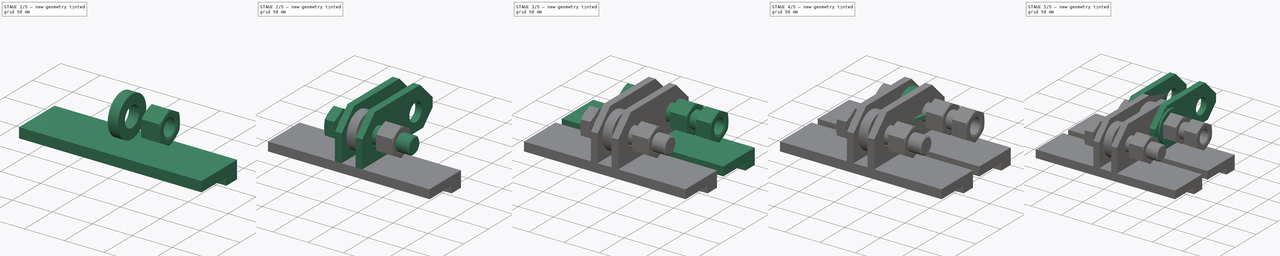
[diagram: build sequence overview — one tinted view per stage of 5, left to right]
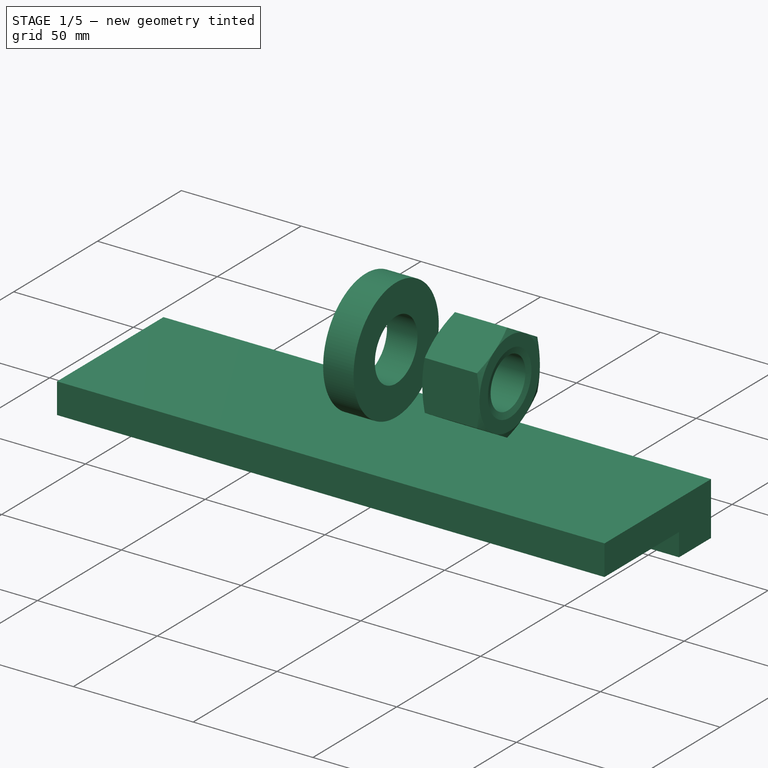
[diagram: stage 1 of 5 — iso view after this stage's code; geometry added in this stage tinted green]
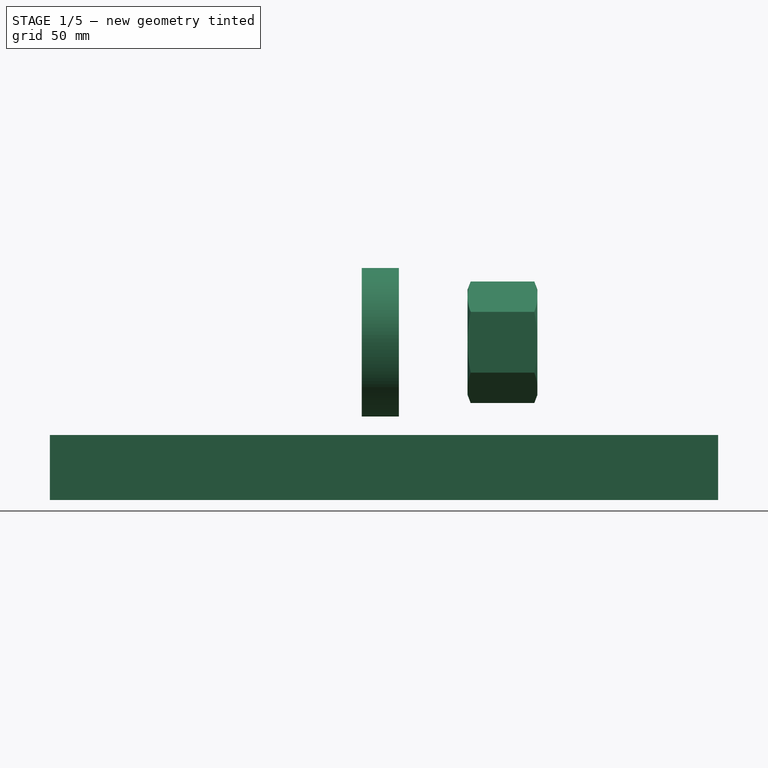
[diagram: stage 1 of 5 — front view after this stage's code; geometry added in this stage tinted green]
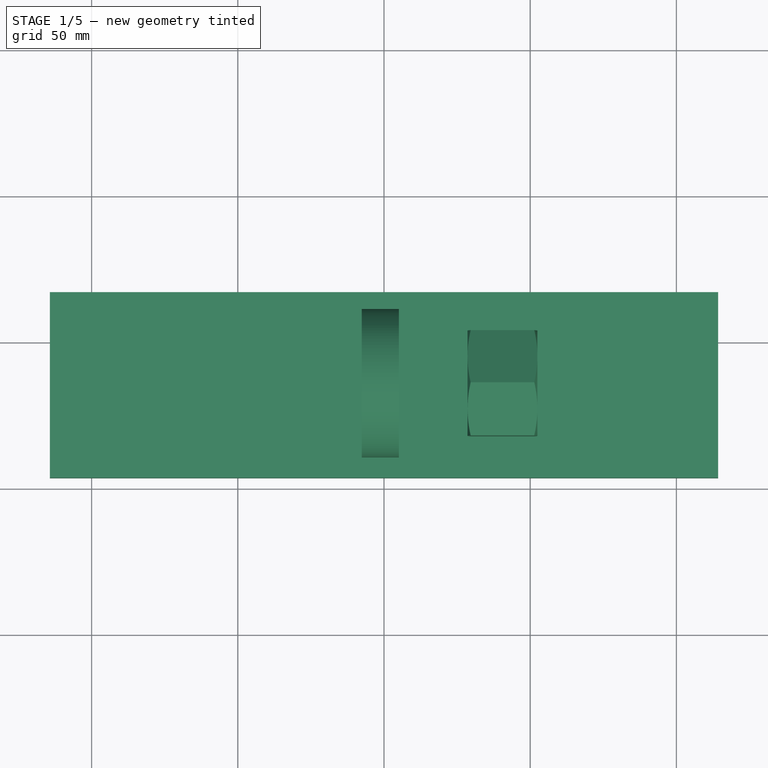
[diagram: stage 1 of 5 — top view after this stage's code; geometry added in this stage tinted green]
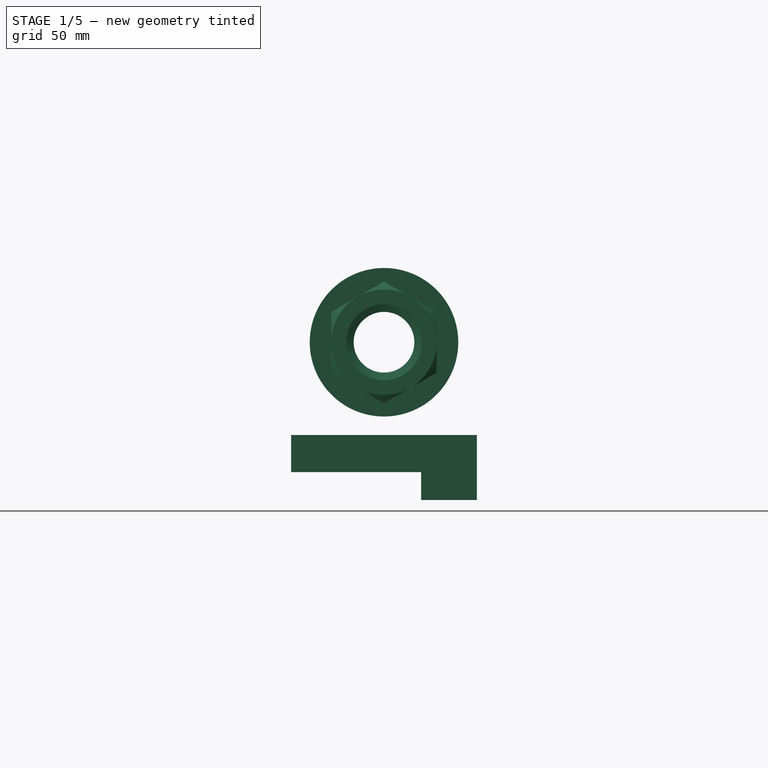
[diagram: stage 1 of 5 — right view after this stage's code; geometry added in this stage tinted green]
FCSTD DOCUMENT  (FreeCAD 0.16R6712 (Git))
Label: track unit mc1710
License: All rights reserved
LicenseURL: http://en.wikipedia.org/wiki/All_rights_reserved
objects: App::FeaturePython×13, PartDesign::Pad×9, Sketcher::SketchObject×8, Part::FeaturePython×5, Part::Cylinder×3, Part::MultiFuse×1, App::MeasureDistance×1
note: 35 computed .brp shape members not serialized (recipe doc carries the construction recipe); baked Part::Feature solids carry a one-line shape summary decoded from their .brp

FEATURE [Sketcher::SketchObject] Sketch
  sketch-geometry (4):
    g0: LineSegment StartX=-114.3 StartY=31.75 StartZ=0 EndX=114.3 EndY=31.75 EndZ=0
    g1: LineSegment StartX=114.3 StartY=31.75 StartZ=0 EndX=114.3 EndY=-31.75 EndZ=0
    g2: LineSegment StartX=114.3 StartY=-31.75 StartZ=0 EndX=-114.3 EndY=-31.75 EndZ=0
    g3: LineSegment StartX=-114.3 StartY=-31.75 StartZ=0 EndX=-114.3 EndY=31.75 EndZ=0
  constraints (11):
    c: Coincident(g0,g1)
    c: Coincident(g1,g2)
    c: Coincident(g2,g3)
    c: Coincident(g3,g0)
    c: Horizontal(g0)
    c: Horizontal(g2)
    c: Vertical(g1)
    c: Vertical(g3)
    c: DistanceX(g0,g0) = 228.6
    c: DistanceY(g3,g3) = 63.5
    c: Symmetric(g1,g0,g-1)
FEATURE [PartDesign::Pad] Pad
  Length = 12.7
  Length2 = 100
  Placement = pos=(0,11.43,6.36567) rot=(0,0,1;0rad)
  Sketch = -> Sketch
  Type = 0
FEATURE [Part::FeaturePython] Nut002  label="M24-Nut002"  # Fasteners workbench fastener (typed FeaturePython)
  Placement = pos=(28.575,-64.77,50.8) rot=(0,1,0;1.5708rad)
  diameter = 9
  invert = false
  matchOuter = false
  offset = 0
  thread = false
  type = 2
FEATURE [App::FeaturePython] axialConstraint01  # a2plus constraint (typed FeaturePython)
  Object1 = Pad002
  Object2 = Pad001
  SubElement1 = Face10
  SubElement2 = Face10
  Type = axial
  directionConstraint = 0
  lockRotation = false
FEATURE [App::FeaturePython] axialConstraint02  # a2plus constraint (typed FeaturePython)
  Object1 = Pad007
  Object2 = Pad005
  SubElement1 = Face11
  SubElement2 = Face11
  Type = axial
  directionConstraint = 0
  lockRotation = false
FEATURE [App::FeaturePython] planeConstraint01  # a2plus constraint (typed FeaturePython)
  Object1 = Pad002
  Object2 = Pad007
  SubElement1 = Face12
  SubElement2 = Face13
  Type = plane
  directionConstraint = 0
  offset = 0
FEATURE [App::FeaturePython] planeConstraint02  # a2plus constraint (typed FeaturePython)
  Object1 = Pad005
  Object2 = Pad001
  SubElement1 = Face12
  SubElement2 = Face13
  Type = plane
  directionConstraint = 0
  offset = 0
FEATURE [App::FeaturePython] axialConstraint03  # a2plus constraint (typed FeaturePython)
  Object1 = Pad002
  Object2 = Pad007
  SubElement1 = Face11
  SubElement2 = Face10
  Type = axial
  directionConstraint = 0
  lockRotation = false
FEATURE [App::FeaturePython] axialConstraint04  # a2plus constraint (typed FeaturePython)
  Object1 = Pad001
  Object2 = Pad005
  SubElement1 = Face11
  SubElement2 = Face10
  Type = axial
  directionConstraint = 0
  lockRotation = false
FEATURE [App::FeaturePython] axialConstraint05  # a2plus constraint (typed FeaturePython)
  Object1 = Pad005
  Object2 = Pad007
  SubElement1 = Face11
  SubElement2 = Face11
  Type = axial
  directionConstraint = 0
  lockRotation = false
FEATURE [App::FeaturePython] angleConstraint01  # a2plus constraint (typed FeaturePython)
  Object1 = Pad007
  Object2 = Pad004
  SubElement1 = Face7
  SubElement2 = Face1
  Type = angle_between_planes
  angle = 0
FEATURE [App::MeasureDistance] Distance  label="Distance: 0.775 in"
  Distance = 19.685
  P1 = (9.525,20.2564,82.5657)
  P2 = (-10.16,20.2564,82.5657)
FEATURE [Sketcher::SketchObject] Sketch008
  Placement = pos=(0,0,0) rot=(0.57735,0.57735,0.57735;2.0944rad)
  sketch-geometry (2):
    g0: Circle CenterX=0 CenterY=0 CenterZ=0 NormalX=0 NormalY=0 NormalZ=1 Radius=25.4
    g1: Circle CenterX=0 CenterY=0 CenterZ=0 NormalX=0 NormalY=0 NormalZ=1 Radius=12.7
  constraints (4):
    c: Coincident(g0,g-1)
    c: Radius(g0) = 25.4
    c: Coincident(g1,g-1)
    c: Radius(g1) = 12.7
FEATURE [PartDesign::Pad] Pad008
  Length = 12.7
  Length2 = 100
  Placement = pos=(-7.62,-64.77,50.8) rot=(0.57735,0.57735,0.57735;2.0944rad)
  Sketch = -> Sketch008
  Type = 0
FEATURE [App::FeaturePython] axialConstraint06  # a2plus constraint (typed FeaturePython)
  Object1 = Pad008
  Object2 = Screw001
  SubElement1 = Face2
  SubElement2 = Face19
  Type = axial
  directionConstraint = 1
  lockRotation = false
FEATURE [App::FeaturePython] planeConstraint03  # a2plus constraint (typed FeaturePython)
  Object1 = Pad008
  Object2 = Pad003
  SubElement1 = Face3
  SubElement2 = Face3
  Type = plane
  directionConstraint = 0
  offset = 0
FEATURE [App::FeaturePython] planeConstraint04  # a2plus constraint (typed FeaturePython)
  Object1 = Screw001
  Object2 = Screw
  SubElement1 = Face1
  SubElement2 = Face1
  Type = plane
  directionConstraint = 0
  offset = 0
FEATURE [App::FeaturePython] planeConstraint05  # a2plus constraint (typed FeaturePython)
  Object1 = Nut002
  Object2 = Nut
  SubElement1 = Face3
  SubElement2 = Face3
  Type = plane
  directionConstraint = 0
  offset = 0
FEATURE [PartDesign::Pad] Pad009
  Length = 228.6
  Length2 = 100
  Placement = pos=(0,-64.77,6.36567) rot=(0,0,1;0rad)
  Reversed = true
  Sketch = -> Sketch004
  Type = 0
FEATURE [App::FeaturePython] planeConstraint06  # a2plus constraint (typed FeaturePython)
  Object1 = Pad009
  Object2 = Pad005
  SubElement1 = Face2
  SubElement2 = Face1
  Type = plane
  directionConstraint = 0
  offset = 0
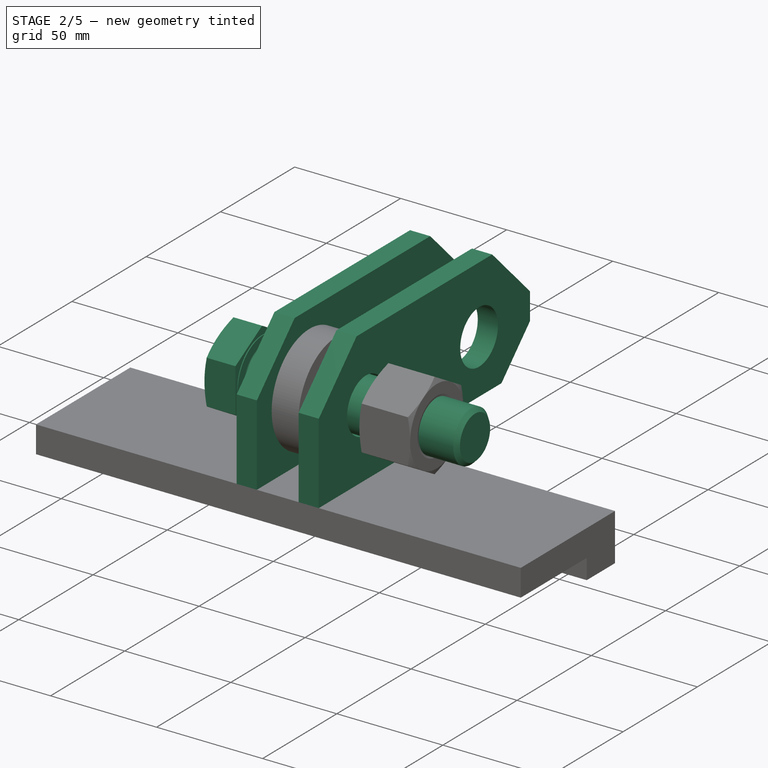
[diagram: stage 2 of 5 — iso view after this stage's code; geometry added in this stage tinted green]
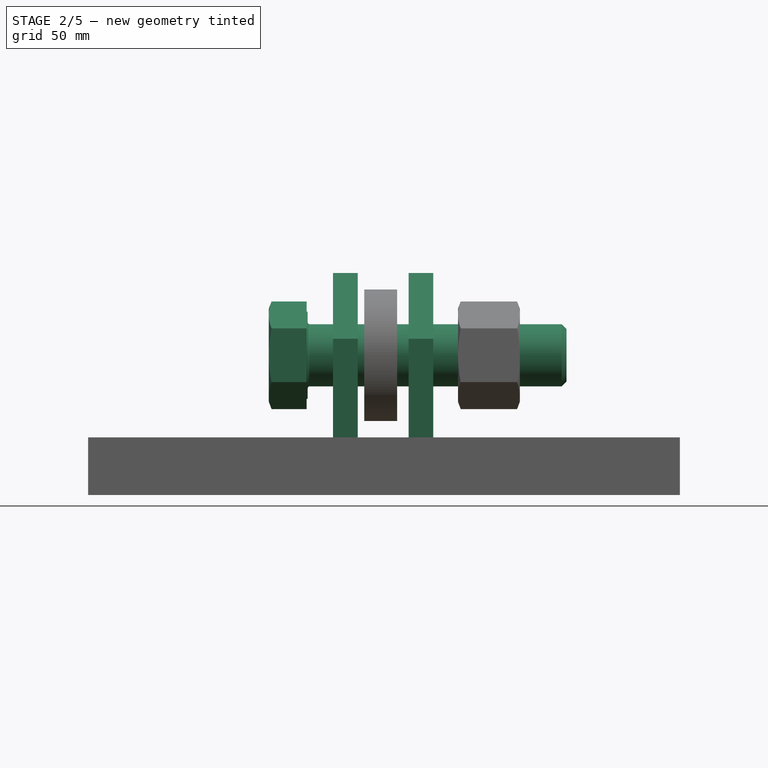
[diagram: stage 2 of 5 — front view after this stage's code; geometry added in this stage tinted green]
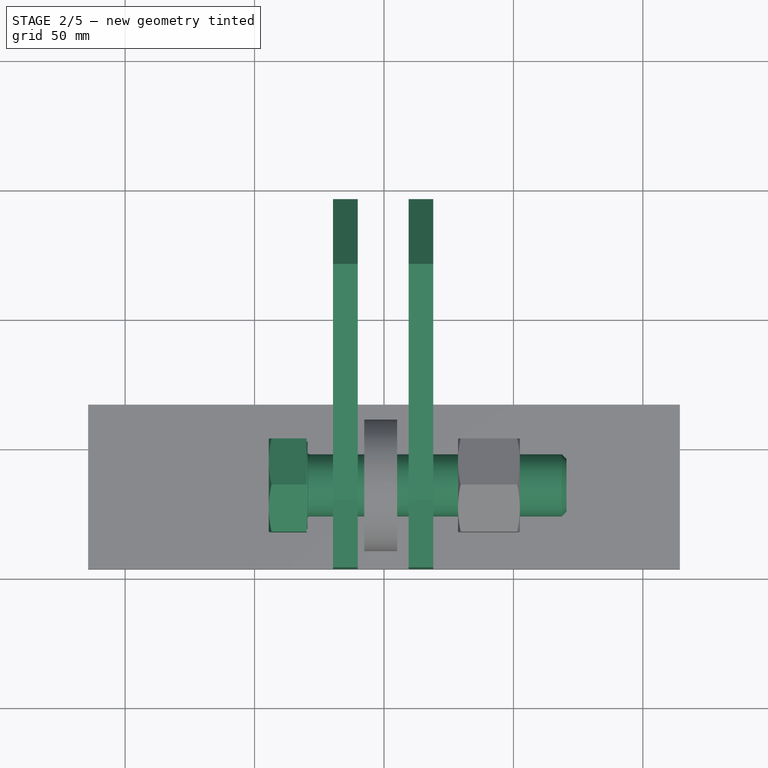
[diagram: stage 2 of 5 — top view after this stage's code; geometry added in this stage tinted green]
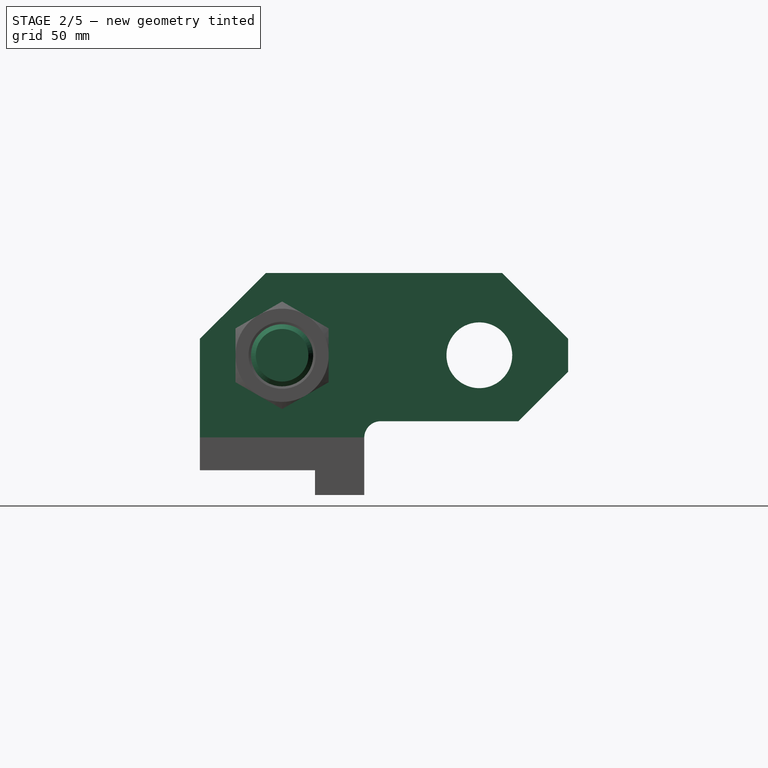
[diagram: stage 2 of 5 — right view after this stage's code; geometry added in this stage tinted green]
FEATURE [Sketcher::SketchObject] Sketch005
  Placement = pos=(0,0,0) rot=(0.57735,0.57735,0.57735;2.0944rad)
  sketch-geometry (11):
    g0: LineSegment StartX=-45.6564 StartY=31.7657 StartZ=0 EndX=45.6564 EndY=31.7657 EndZ=0
    g1: LineSegment StartX=71.12 StartY=6.36567 StartZ=0 EndX=71.12 EndY=-6.33433 EndZ=0
    g2: LineSegment StartX=-71.12 StartY=-31.7343 StartZ=0 EndX=-71.12 EndY=6.36567 EndZ=0
    g3: Circle CenterX=-39.37 CenterY=0 CenterZ=0 NormalX=0 NormalY=0 NormalZ=1 Radius=12.7
    g4: Circle CenterX=36.83 CenterY=0 CenterZ=0 NormalX=0 NormalY=0 NormalZ=1 Radius=12.7
    g5: LineSegment StartX=-45.6564 StartY=31.7657 StartZ=0 EndX=-71.12 EndY=6.36567 EndZ=0
    g6: LineSegment StartX=45.6564 StartY=31.7657 StartZ=0 EndX=71.12 EndY=6.36567 EndZ=0
    g7: LineSegment StartX=-71.12 StartY=-31.7343 StartZ=0 EndX=-7.62 EndY=-31.7343 EndZ=0
    g8: ArcOfCircle CenterX=-1.27071 CenterY=-31.8292 CenterZ=0 NormalX=0 NormalY=0 NormalZ=1 Radius=6.35 StartAngle=1.57081 EndAngle=3.12666
    g9: LineSegment StartX=-1.27081 StartY=-25.4792 StartZ=0 EndX=51.9272 EndY=-25.4792 EndZ=0
    g10: LineSegment StartX=71.12 StartY=-6.33433 StartZ=0 EndX=51.9272 EndY=-25.4792 EndZ=0
  constraints (34):
    c: Vertical(g1)
    c: Vertical(g2)
    c: Radius(g3) = 12.7
    c: DistanceX(g2,g3) = 31.75
    c: Equal(g3,g4) = 12.7
    c: DistanceX(g3,g4) = 76.2
    c: Coincident(g2,g5)
    c: PointOnObject(g0,g5)
    c: Coincident(g5,g0)
    c: Coincident(g0,g6)
    c: Coincident(g1,g6)
    c: DistanceX(g0,g0) = 91.3127
    c: Symmetric(g1,g2,g-2)
    c: Equal(g5,g6)
    c: DistanceY(g1,g1) = 12.7
    c: PointOnObject(g3,g-1)
    c: PointOnObject(g4,g-1)
    c: DistanceY(g2,g0) = 63.5
    c: Coincident(g7,g2)
    c: Horizontal(g7)
    c: DistanceX(g7,g7) = 63.5
    c: Coincident(g8,g7)
    c: Radius(g8) = 6.35
    c: Horizontal(g9)
    c: Coincident(g9,g8)
    c: DistanceY(g2,g2) = 38.1
    c: DistanceX(g9) = 51.9272
    c: DistanceY(g9) = -25.4792
    c: Coincident(g10,g1)
    c: Coincident(g10,g9)
    c: DistanceX(g2,g1) = 142.24
    c: Parallel(g10,g5)
    c: Horizontal(g0)
    c: DistanceX(g9,g9) = 53.198
FEATURE [PartDesign::Pad] Pad005
  Length = 9.525
  Length2 = 100
  Placement = pos=(-19.685,-25.4,50.8) rot=(0.57735,0.57735,0.57735;2.0944rad)
  Sketch = -> Sketch005
  Type = 0
FEATURE [Sketcher::SketchObject] Sketch007
  Placement = pos=(0,0,0) rot=(0.57735,0.57735,0.57735;2.0944rad)
  sketch-geometry (11):
    g0: LineSegment StartX=-45.6564 StartY=31.7657 StartZ=0 EndX=45.6564 EndY=31.7657 EndZ=0
    g1: LineSegment StartX=71.12 StartY=6.36567 StartZ=0 EndX=71.12 EndY=-6.33433 EndZ=0
    g2: LineSegment StartX=-71.12 StartY=-31.7343 StartZ=0 EndX=-71.12 EndY=6.36567 EndZ=0
    g3: Circle CenterX=-39.37 CenterY=0 CenterZ=0 NormalX=0 NormalY=0 NormalZ=1 Radius=12.7
    g4: Circle CenterX=36.83 CenterY=0 CenterZ=0 NormalX=0 NormalY=0 NormalZ=1 Radius=12.7
    g5: LineSegment StartX=-45.6564 StartY=31.7657 StartZ=0 EndX=-71.12 EndY=6.36567 EndZ=0
    g6: LineSegment StartX=45.6564 StartY=31.7657 StartZ=0 EndX=71.12 EndY=6.36567 EndZ=0
    g7: LineSegment StartX=-71.12 StartY=-31.7343 StartZ=0 EndX=-7.62 EndY=-31.7343 EndZ=0
    g8: ArcOfCircle CenterX=-1.27071 CenterY=-31.8292 CenterZ=0 NormalX=0 NormalY=0 NormalZ=1 Radius=6.35 StartAngle=1.57081 EndAngle=3.12666
    g9: LineSegment StartX=-1.27081 StartY=-25.4792 StartZ=0 EndX=51.9272 EndY=-25.4792 EndZ=0
    g10: LineSegment StartX=71.12 StartY=-6.33433 StartZ=0 EndX=51.9272 EndY=-25.4792 EndZ=0
  constraints (34):
    c: Vertical(g1)
    c: Vertical(g2)
    c: Radius(g3) = 12.7
    c: DistanceX(g2,g3) = 31.75
    c: Equal(g3,g4) = 12.7
    c: DistanceX(g3,g4) = 76.2
    c: Coincident(g2,g5)
    c: PointOnObject(g0,g5)
    c: Coincident(g5,g0)
    c: Coincident(g0,g6)
    c: Coincident(g1,g6)
    c: DistanceX(g0,g0) = 91.3127
    c: Symmetric(g1,g2,g-2)
    c: Equal(g5,g6)
    c: DistanceY(g1,g1) = 12.7
    c: PointOnObject(g3,g-1)
    c: PointOnObject(g4,g-1)
    c: DistanceY(g2,g0) = 63.5
    c: Coincident(g7,g2)
    c: Horizontal(g7)
    c: DistanceX(g7,g7) = 63.5
    c: Coincident(g8,g7)
    c: Radius(g8) = 6.35
    c: Horizontal(g9)
    c: Coincident(g9,g8)
    c: DistanceY(g2,g2) = 38.1
    c: DistanceX(g9) = 51.9272
    c: DistanceY(g9) = -25.4792
    c: Coincident(g10,g1)
    c: Coincident(g10,g9)
    c: DistanceX(g2,g1) = 142.24
    c: Parallel(g10,g5)
    c: Horizontal(g0)
    c: DistanceX(g9,g9) = 53.198
FEATURE [PartDesign::Pad] Pad007
  Length = 9.525
  Length2 = 100
  Placement = pos=(9.525,-25.4,50.8) rot=(0.57735,0.57735,0.57735;2.0944rad)
  Sketch = -> Sketch007
  Type = 0
FEATURE [Part::FeaturePython] Screw001  label="M24x100-Screw"  # Fasteners workbench fastener (typed FeaturePython)
  Placement = pos=(-29.502,-64.77,50.8) rot=(0,-1,0;1.5708rad)
  diameter = 17
  invert = false
  length = 1
  matchOuter = false
  offset = 0
  thread = false
  type = 13
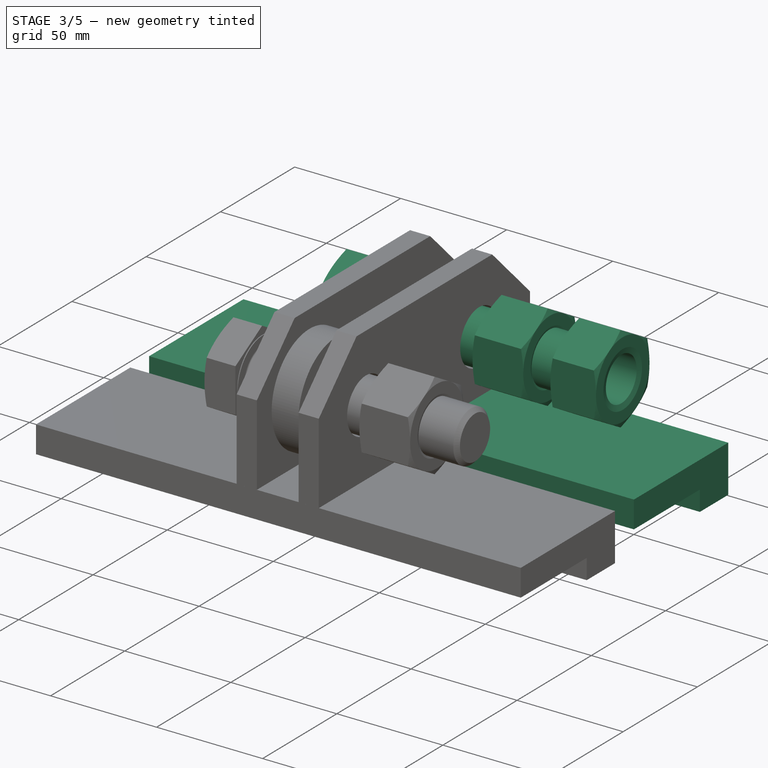
[diagram: stage 3 of 5 — iso view after this stage's code; geometry added in this stage tinted green]
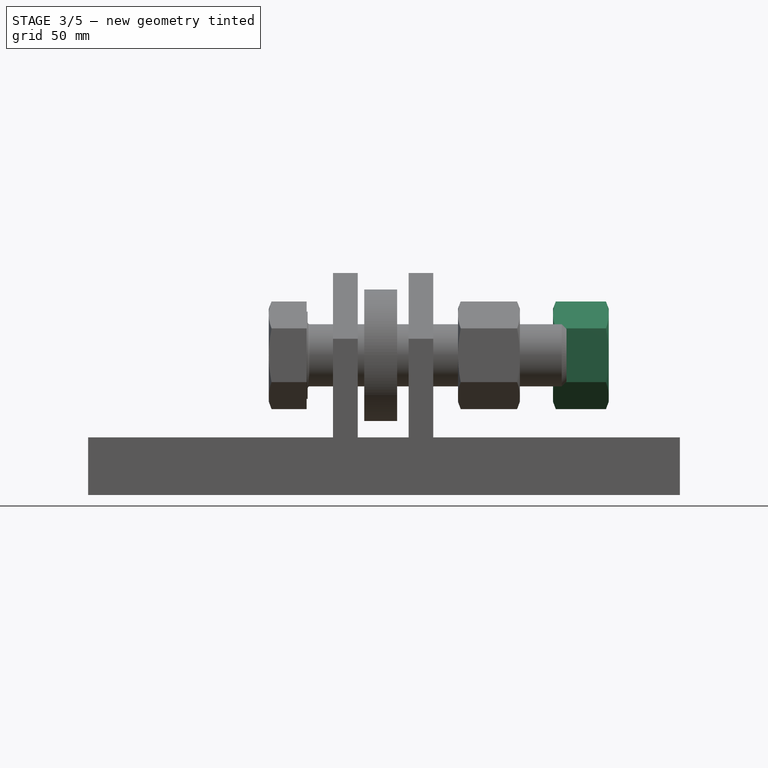
[diagram: stage 3 of 5 — front view after this stage's code; geometry added in this stage tinted green]
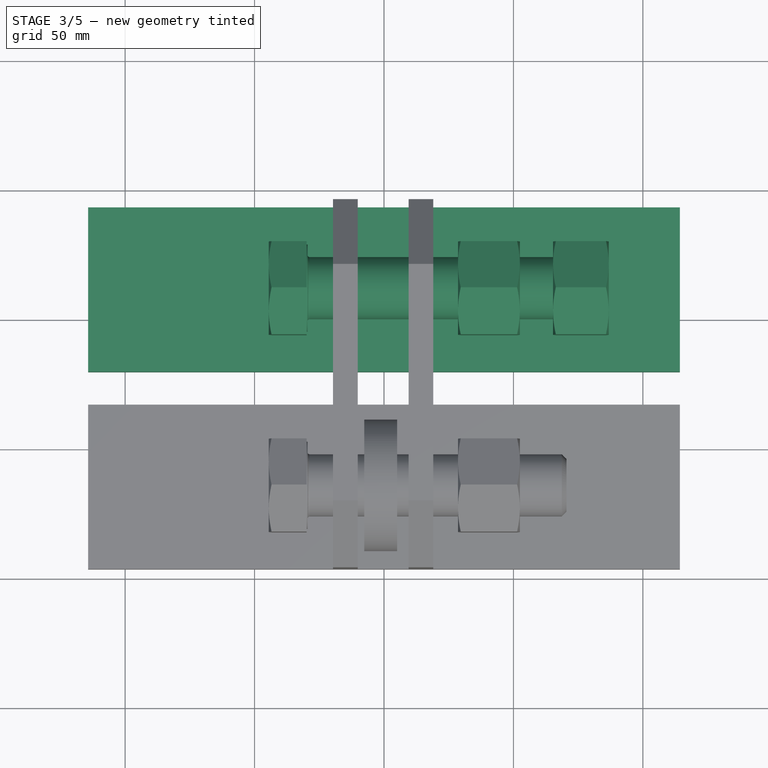
[diagram: stage 3 of 5 — top view after this stage's code; geometry added in this stage tinted green]
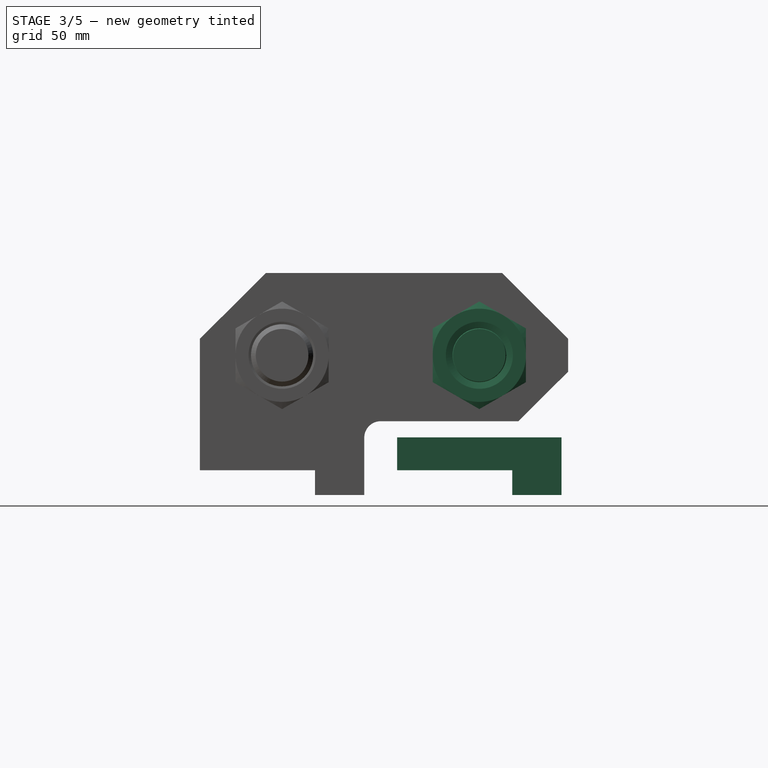
[diagram: stage 3 of 5 — right view after this stage's code; geometry added in this stage tinted green]
FEATURE [Part::FeaturePython] Screw  label="M24x100-Screw001"  # Fasteners workbench fastener (typed FeaturePython)
  Placement = pos=(-29.502,11.43,50.8) rot=(0,-1,0;1.5708rad)
  diameter = 17
  invert = false
  length = 1
  matchOuter = false
  offset = 0
  thread = false
  type = 13
FEATURE [Part::FeaturePython] Nut  label="M24-Nut"  # Fasteners workbench fastener (typed FeaturePython)
  Placement = pos=(28.575,11.43,50.8) rot=(0,1,0;1.5708rad)
  diameter = 9
  invert = false
  matchOuter = false
  offset = 0
  thread = false
  type = 2
FEATURE [Part::FeaturePython] Nut001  label="M24-Nut001"  # Fasteners workbench fastener (typed FeaturePython)
  Placement = pos=(65.302,11.43,50.8) rot=(0,1,0;1.5708rad)
  diameter = 17
  invert = false
  matchOuter = false
  offset = 0
  thread = false
  type = 1
FEATURE [Sketcher::SketchObject] Sketch004
  ExternalGeometry = -> [Pad]
  Placement = pos=(114.3,11.43,6.36567) rot=(0.57735,0.57735,0.57735;2.0944rad)
  Support = -> Pad [Face2]
  sketch-geometry (4):
    g0: LineSegment StartX=31.75 StartY=0 StartZ=0 EndX=12.7 EndY=0 EndZ=0
    g1: LineSegment StartX=12.7 StartY=0 StartZ=0 EndX=12.7 EndY=-9.525 EndZ=0
    g2: LineSegment StartX=12.7 StartY=-9.525 StartZ=0 EndX=31.75 EndY=-9.525 EndZ=0
    g3: LineSegment StartX=31.75 StartY=-9.525 StartZ=0 EndX=31.75 EndY=0 EndZ=0
  constraints (12):
    c: Coincident(g0,g1)
    c: Coincident(g1,g2)
    c: Coincident(g2,g3)
    c: Coincident(g3,g0)
    c: Horizontal(g0)
    c: Horizontal(g2)
    c: Vertical(g1)
    c: Vertical(g3)
    c: PointOnObject(g0,g-1)
    c: Coincident(g0,g-4)
    c: DistanceY(g3,g3) = 9.525  'Cleat Height'
    c: DistanceX(g2,g2) = 19.05  'Cleat Width'
FEATURE [PartDesign::Pad] Pad004
  Length = 228.6
  Length2 = 100
  Placement = pos=(0,11.43,6.36567) rot=(0,0,1;0rad)
  Reversed = true
  Sketch = -> Sketch004
  Type = 0
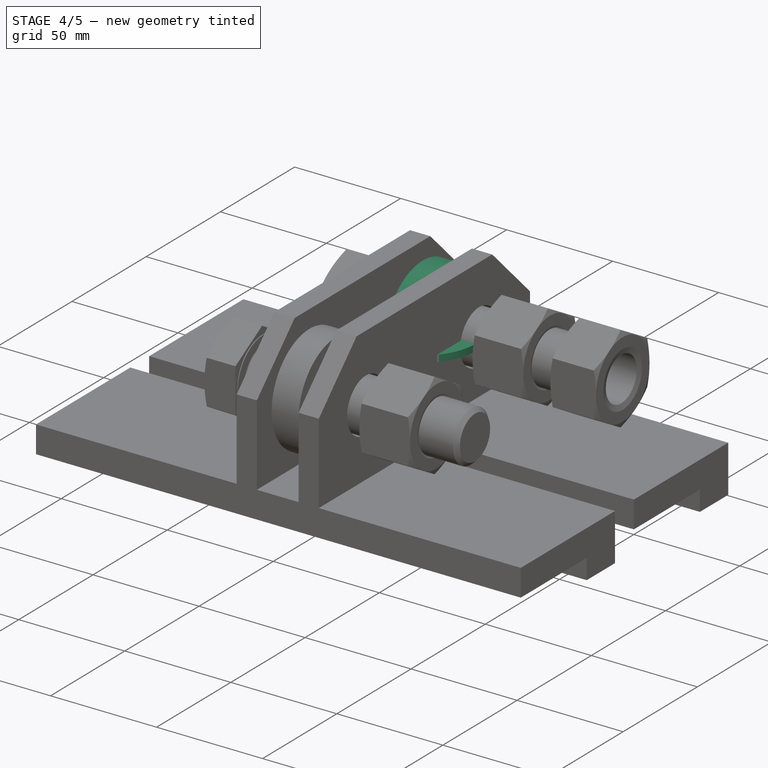
[diagram: stage 4 of 5 — iso view after this stage's code; geometry added in this stage tinted green]
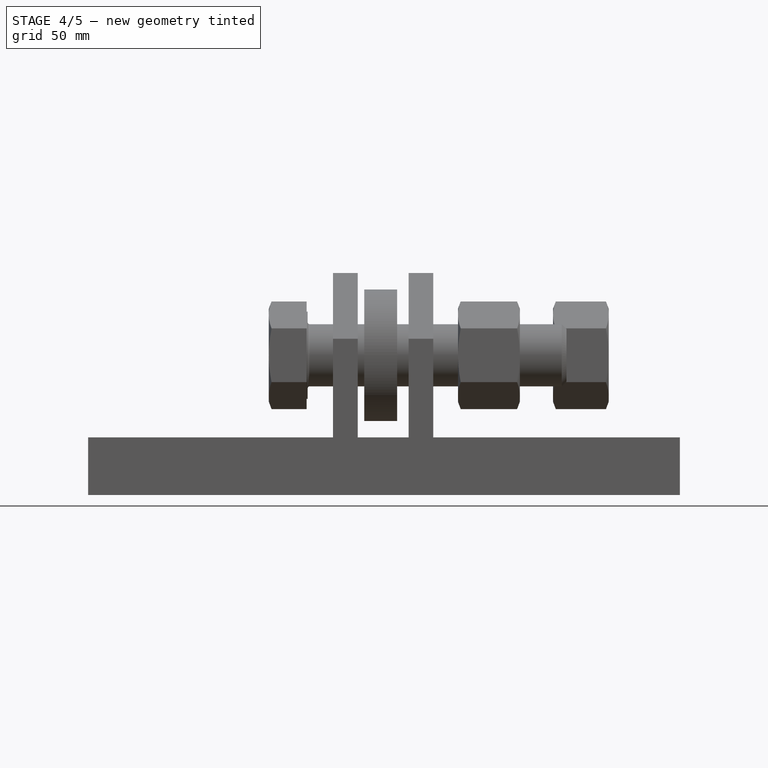
[diagram: stage 4 of 5 — front view after this stage's code; geometry added in this stage tinted green]
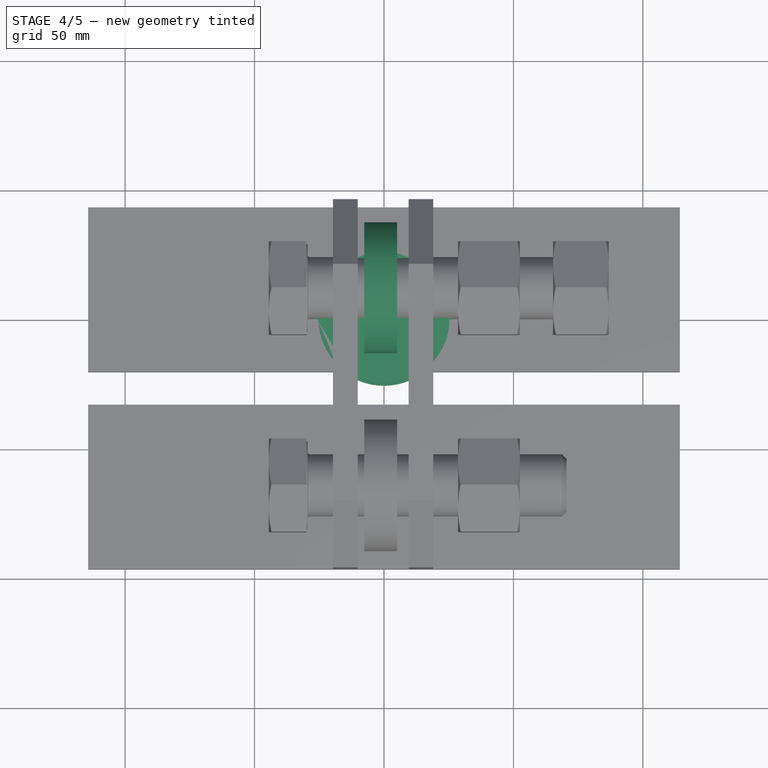
[diagram: stage 4 of 5 — top view after this stage's code; geometry added in this stage tinted green]
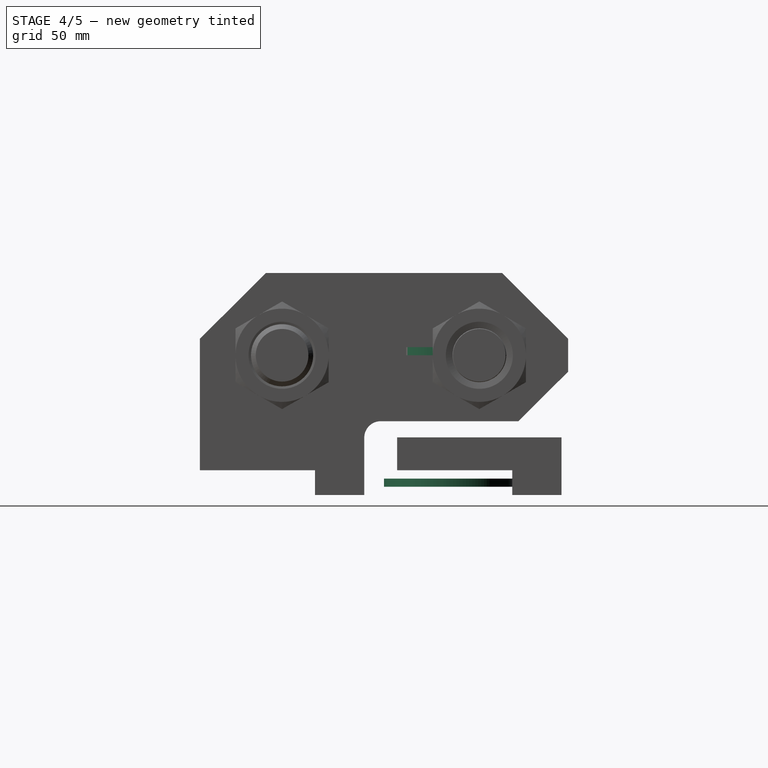
[diagram: stage 4 of 5 — right view after this stage's code; geometry added in this stage tinted green]
FEATURE [Part::Cylinder] Cylinder003
  Angle = 360
  Height = 3.17
  Radius = 25.4
FEATURE [Part::Cylinder] Cylinder004
  Angle = 360
  Height = 3.17
  Placement = pos=(0,0,50.8) rot=(0,0,1;0rad)
  Radius = 25.4
FEATURE [Sketcher::SketchObject] Sketch003
  Placement = pos=(-7.62,0,0) rot=(0.57735,0.57735,0.57735;2.0944rad)
  sketch-geometry (2):
    g0: Circle CenterX=0 CenterY=0 CenterZ=0 NormalX=0 NormalY=0 NormalZ=1 Radius=25.4
    g1: Circle CenterX=0 CenterY=0 CenterZ=0 NormalX=0 NormalY=0 NormalZ=1 Radius=12.7
  constraints (4):
    c: Coincident(g0,g-1)
    c: Radius(g0) = 25.4
    c: Coincident(g1,g-1)
    c: Radius(g1) = 12.7
FEATURE [PartDesign::Pad] Pad003  label="roller"
  Length = 12.7
  Length2 = 100
  Placement = pos=(-7.62,11.43,50.8) rot=(0.57735,0.57735,0.57735;2.0944rad)
  Sketch = -> Sketch003
  Type = 0
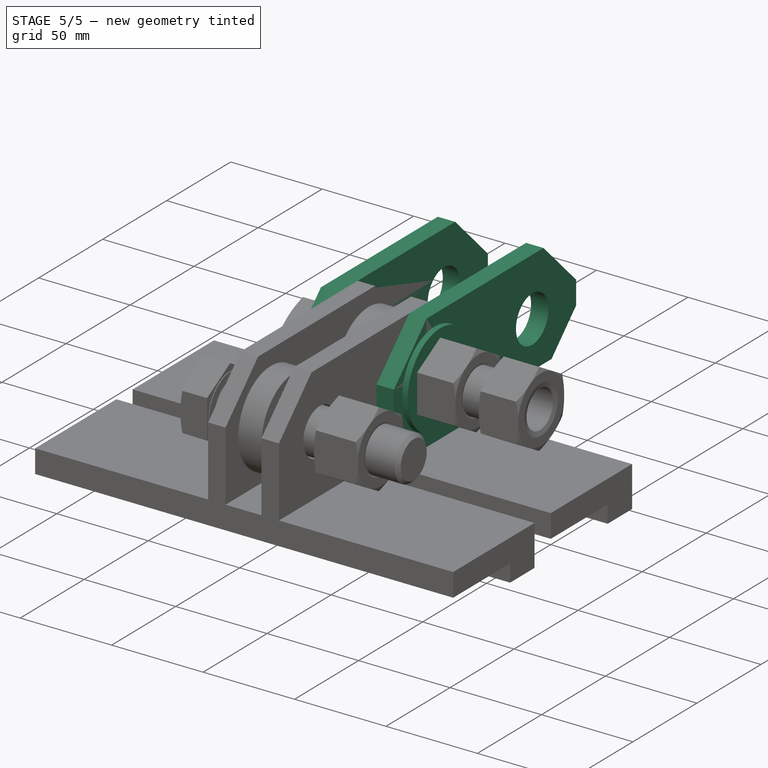
[diagram: stage 5 of 5 — iso view after this stage's code; geometry added in this stage tinted green]
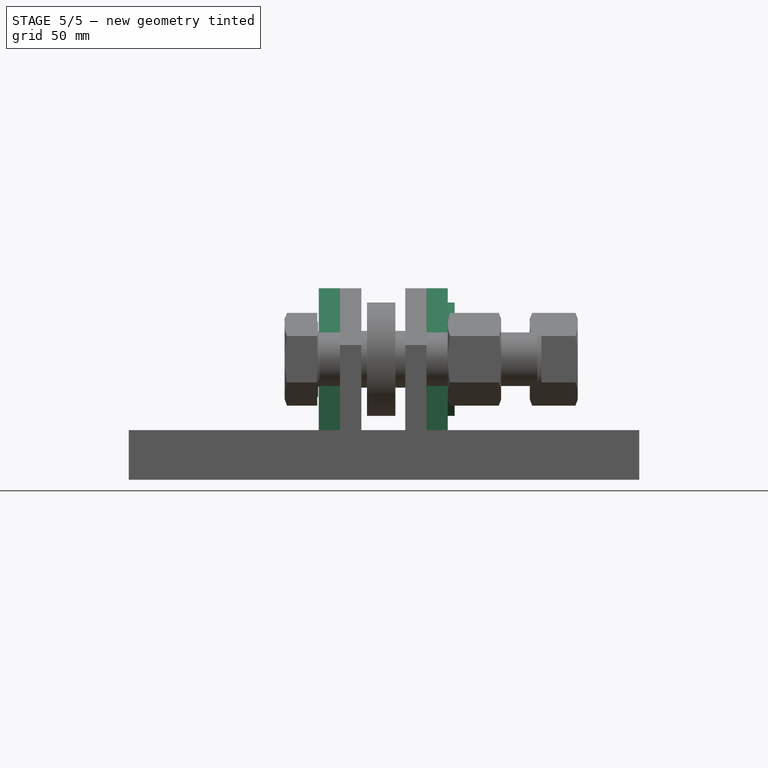
[diagram: stage 5 of 5 — front view after this stage's code; geometry added in this stage tinted green]
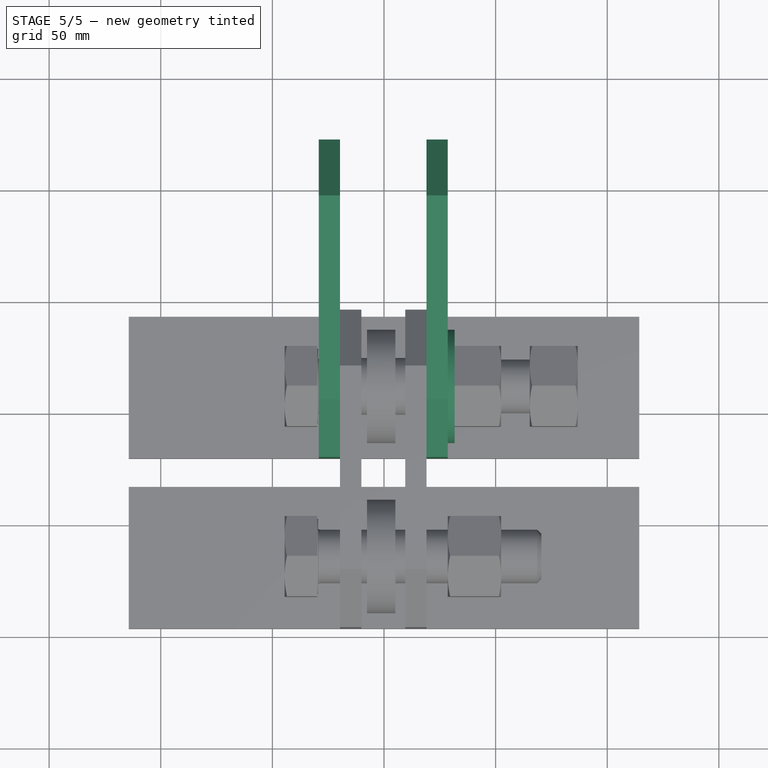
[diagram: stage 5 of 5 — top view after this stage's code; geometry added in this stage tinted green]
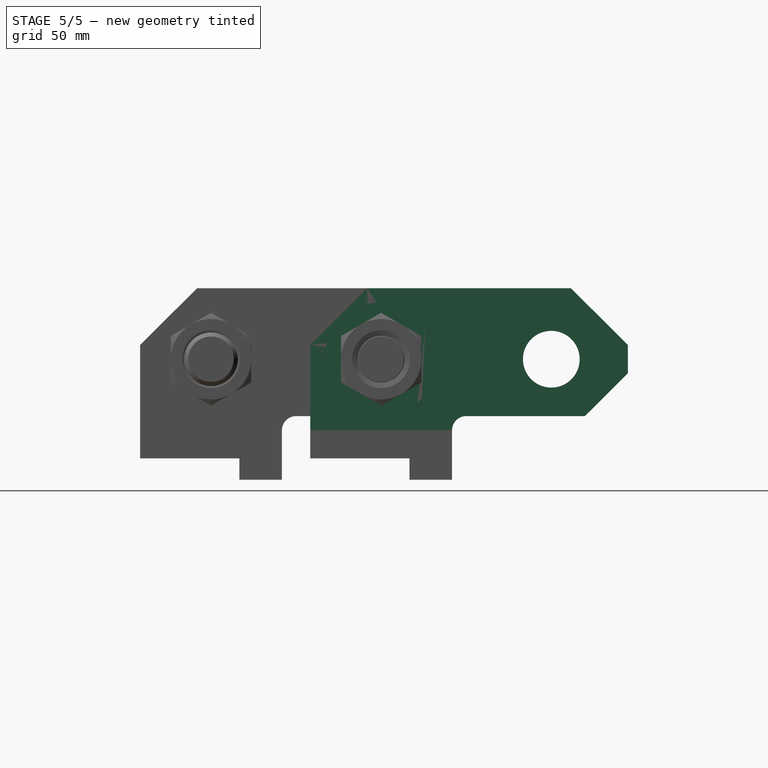
[diagram: stage 5 of 5 — right view after this stage's code; geometry added in this stage tinted green]
FEATURE [Sketcher::SketchObject] Sketch001
  Placement = pos=(-29.21,50.8,50.8) rot=(0.57735,0.57735,0.57735;2.0944rad)
  sketch-geometry (11):
    g0: LineSegment StartX=-45.6564 StartY=31.7657 StartZ=0 EndX=45.6564 EndY=31.7657 EndZ=0
    g1: LineSegment StartX=71.12 StartY=6.36567 StartZ=0 EndX=71.12 EndY=-6.33433 EndZ=0
    g2: LineSegment StartX=-71.12 StartY=-31.7343 StartZ=0 EndX=-71.12 EndY=6.36567 EndZ=0
    g3: Circle CenterX=-39.37 CenterY=0 CenterZ=0 NormalX=0 NormalY=0 NormalZ=1 Radius=12.7
    g4: Circle CenterX=36.83 CenterY=0 CenterZ=0 NormalX=0 NormalY=0 NormalZ=1 Radius=12.7
    g5: LineSegment StartX=-45.6564 StartY=31.7657 StartZ=0 EndX=-71.12 EndY=6.36567 EndZ=0
    g6: LineSegment StartX=45.6564 StartY=31.7657 StartZ=0 EndX=71.12 EndY=6.36567 EndZ=0
    g7: LineSegment StartX=-71.12 StartY=-31.7343 StartZ=0 EndX=-7.62 EndY=-31.7343 EndZ=0
    g8: ArcOfCircle CenterX=-1.27071 CenterY=-31.8292 CenterZ=0 NormalX=0 NormalY=0 NormalZ=1 Radius=6.35 StartAngle=1.57081 EndAngle=3.12666
    g9: LineSegment StartX=-1.27081 StartY=-25.4792 StartZ=0 EndX=51.9272 EndY=-25.4792 EndZ=0
    g10: LineSegment StartX=71.12 StartY=-6.33433 StartZ=0 EndX=51.9272 EndY=-25.4792 EndZ=0
  constraints (34):
    c: Vertical(g1)
    c: Vertical(g2)
    c: Radius(g3) = 12.7
    c: DistanceX(g2,g3) = 31.75
    c: Equal(g3,g4) = 12.7
    c: DistanceX(g3,g4) = 76.2
    c: Coincident(g2,g5)
    c: PointOnObject(g0,g5)
    c: Coincident(g5,g0)
    c: Coincident(g0,g6)
    c: Coincident(g1,g6)
    c: DistanceX(g0,g0) = 91.3127
    c: Symmetric(g1,g2,g-2)
    c: Equal(g5,g6)
    c: DistanceY(g1,g1) = 12.7
    c: PointOnObject(g3,g-1)
    c: PointOnObject(g4,g-1)
    c: DistanceY(g2,g0) = 63.5
    c: Coincident(g7,g2)
    c: Horizontal(g7)
    c: DistanceX(g7,g7) = 63.5
    c: Coincident(g8,g7)
    c: Radius(g8) = 6.35
    c: Horizontal(g9)
    c: Coincident(g9,g8)
    c: DistanceY(g2,g2) = 38.1
    c: DistanceX(g9) = 51.9272
    c: DistanceY(g9) = -25.4792
    c: Coincident(g10,g1)
    c: Coincident(g10,g9)
    c: DistanceX(g2,g1) = 142.24
    c: Parallel(g10,g5)
    c: Horizontal(g0)
    c: DistanceX(g9,g9) = 53.198
FEATURE [PartDesign::Pad] Pad001  label="link0"
  Length = 9.525
  Length2 = 100
  Placement = pos=(-29.21,50.8,50.8) rot=(0.57735,0.57735,0.57735;2.0944rad)
  Sketch = -> Sketch001
  Type = 0
FEATURE [Sketcher::SketchObject] Sketch002
  Placement = pos=(19.05,50.8,50.8) rot=(0.57735,0.57735,0.57735;2.0944rad)
  sketch-geometry (11):
    g0: LineSegment StartX=-45.6564 StartY=31.7657 StartZ=0 EndX=45.6564 EndY=31.7657 EndZ=0
    g1: LineSegment StartX=71.12 StartY=6.36567 StartZ=0 EndX=71.12 EndY=-6.33433 EndZ=0
    g2: LineSegment StartX=-71.12 StartY=-31.7343 StartZ=0 EndX=-71.12 EndY=6.36567 EndZ=0
    g3: Circle CenterX=-39.37 CenterY=0 CenterZ=0 NormalX=0 NormalY=0 NormalZ=1 Radius=12.7
    g4: Circle CenterX=36.83 CenterY=0 CenterZ=0 NormalX=0 NormalY=0 NormalZ=1 Radius=12.7
    g5: LineSegment StartX=-45.6564 StartY=31.7657 StartZ=0 EndX=-71.12 EndY=6.36567 EndZ=0
    g6: LineSegment StartX=45.6564 StartY=31.7657 StartZ=0 EndX=71.12 EndY=6.36567 EndZ=0
    g7: LineSegment StartX=-71.12 StartY=-31.7343 StartZ=0 EndX=-7.62 EndY=-31.7343 EndZ=0
    g8: ArcOfCircle CenterX=-1.27071 CenterY=-31.8292 CenterZ=0 NormalX=0 NormalY=0 NormalZ=1 Radius=6.35 StartAngle=1.57081 EndAngle=3.12666
    g9: LineSegment StartX=-1.27081 StartY=-25.4792 StartZ=0 EndX=51.9272 EndY=-25.4792 EndZ=0
    g10: LineSegment StartX=71.12 StartY=-6.33433 StartZ=0 EndX=51.9272 EndY=-25.4792 EndZ=0
  constraints (34):
    c: Vertical(g1)
    c: Vertical(g2)
    c: Radius(g3) = 12.7
    c: DistanceX(g2,g3) = 31.75
    c: Equal(g3,g4) = 12.7
    c: DistanceX(g3,g4) = 76.2
    c: Coincident(g2,g5)
    c: PointOnObject(g0,g5)
    c: Coincident(g5,g0)
    c: Coincident(g0,g6)
    c: Coincident(g1,g6)
    c: DistanceX(g0,g0) = 91.3127
    c: Symmetric(g1,g2,g-2)
    c: Equal(g5,g6)
    c: DistanceY(g1,g1) = 12.7
    c: PointOnObject(g3,g-1)
    c: PointOnObject(g4,g-1)
    c: DistanceY(g2,g0) = 63.5
    c: Coincident(g7,g2)
    c: Horizontal(g7)
    c: DistanceX(g7,g7) = 63.5
    c: Coincident(g8,g7)
    c: Radius(g8) = 6.35
    c: Horizontal(g9)
    c: Coincident(g9,g8)
    c: DistanceY(g2,g2) = 38.1
    c: DistanceX(g9) = 51.9272
    c: DistanceY(g9) = -25.4792
    c: Coincident(g10,g1)
    c: Coincident(g10,g9)
    c: DistanceX(g2,g1) = 142.24
    c: Parallel(g10,g5)
    c: Horizontal(g0)
    c: DistanceX(g9,g9) = 53.198
FEATURE [PartDesign::Pad] Pad002  label="link1"
  Length = 9.525
  Length2 = 100
  Placement = pos=(19.05,50.8,50.8) rot=(0.57735,0.57735,0.57735;2.0944rad)
  Sketch = -> Sketch002
  Type = 0
FEATURE [Part::Cylinder] Cylinder001
  Angle = 360
  Height = 50.8
  Radius = 12.7
FEATURE [Part::MultiFuse] Fusion
  Placement = pos=(-22.347,11.43,50.8) rot=(0,1,0;1.5708rad)
  Shapes = -> [Cylinder004,Cylinder003,Cylinder001]
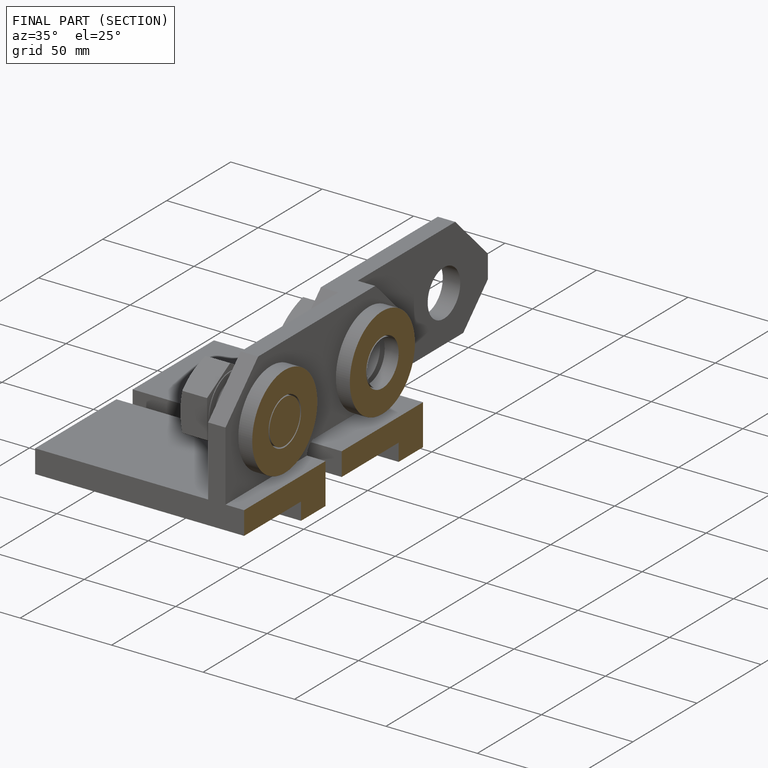
[diagram: finished part — half-section view (interior)]
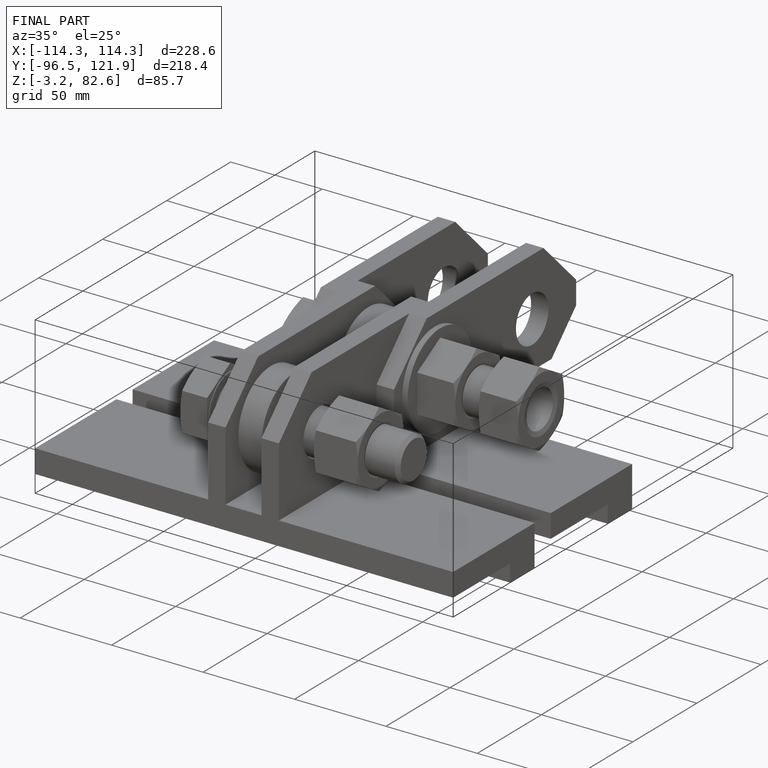
[diagram: finished part — iso view with bounding-box wireframe]
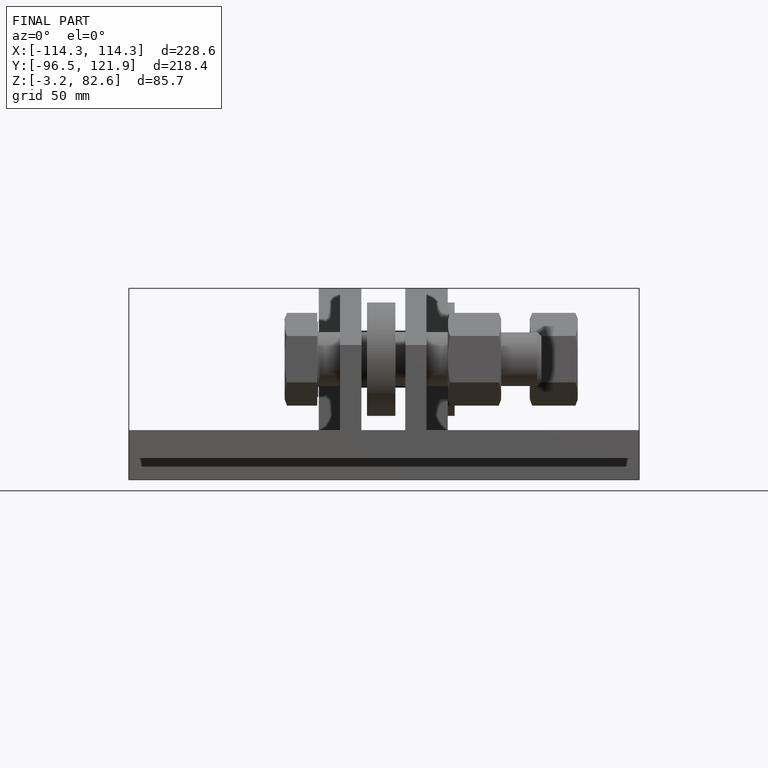
[diagram: finished part — front view with bounding-box wireframe]
